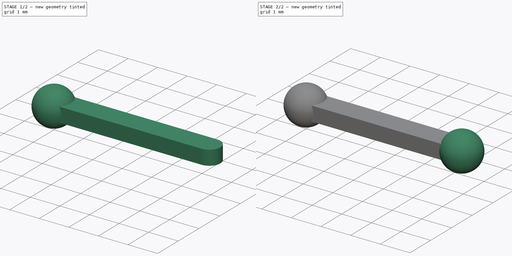
[diagram: build sequence overview — one tinted view per stage of 2, left to right]
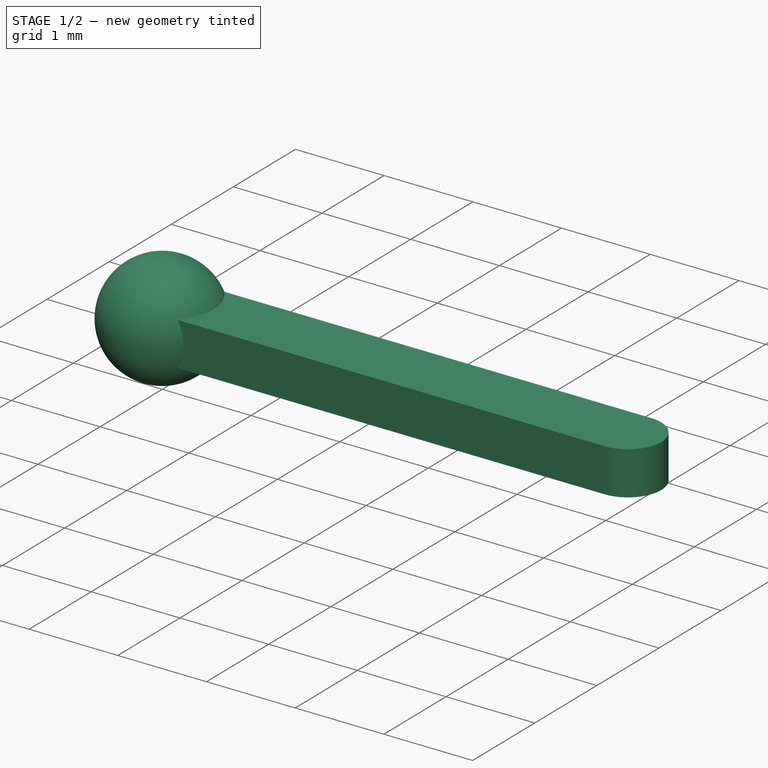
[diagram: stage 1 of 2 — iso view after this stage's code; geometry added in this stage tinted green]
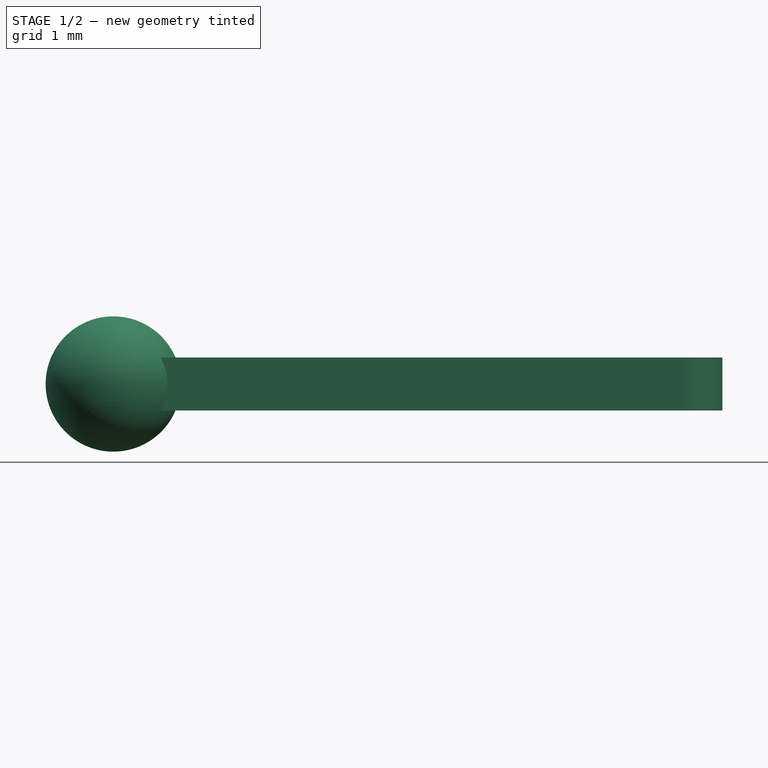
[diagram: stage 1 of 2 — front view after this stage's code; geometry added in this stage tinted green]
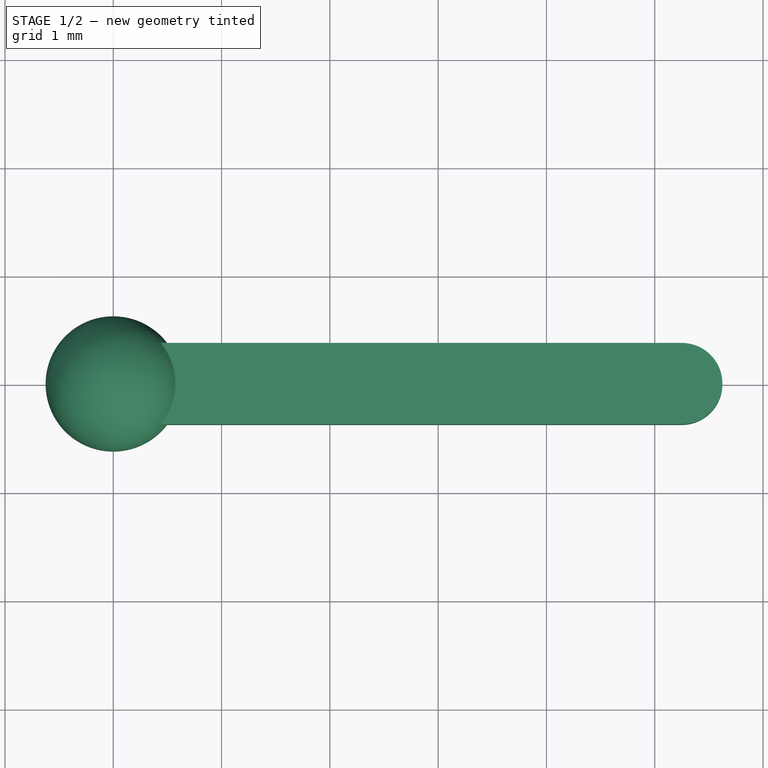
[diagram: stage 1 of 2 — top view after this stage's code; geometry added in this stage tinted green]
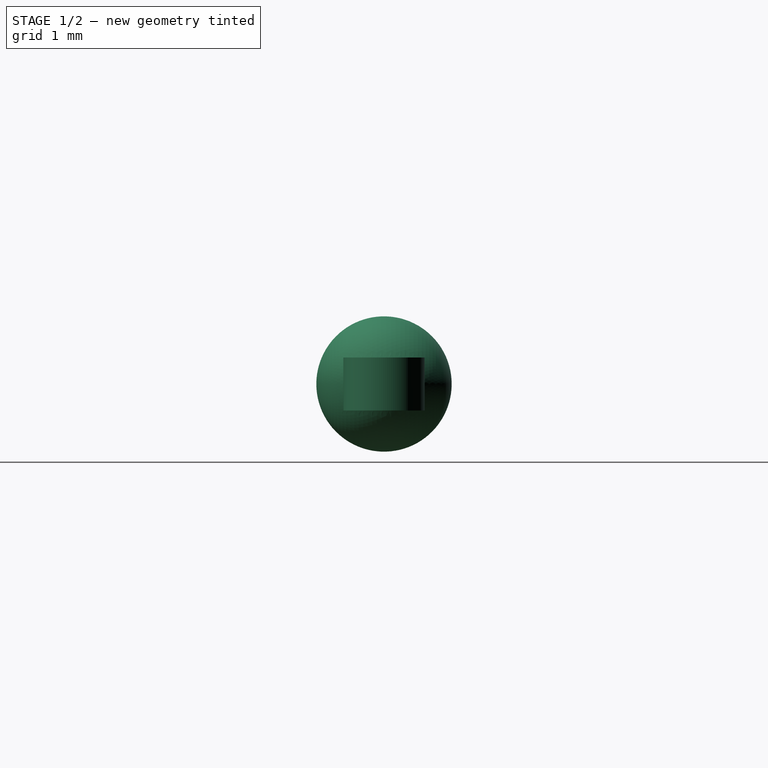
[diagram: stage 1 of 2 — right view after this stage's code; geometry added in this stage tinted green]
FCSTD DOCUMENT  (FreeCAD 0.20R29177 (Git))
Label: mu1
License: All rights reserved
LicenseURL: http://en.wikipedia.org/wiki/All_rights_reserved
objects: Sketcher::SketchObject×3, PartDesign::Line×2, PartDesign::Revolution×2, Spreadsheet::Sheet×1, PartDesign::Pad×1, PartDesign::Body×1
note: 12 computed .brp shape members not serialized (recipe doc carries the construction recipe); baked Part::Feature solids carry a one-line shape summary decoded from their .brp

FEATURE [Spreadsheet::Sheet] Spreadsheet
  cells = A2=Design Parameters; A3=RefLength; B3(RefLength)==1mm; A4=Width; B4(Width)==0.75 * RefLength; A5=Thickness; B5(Thickness)==0.5 * RefLength; A6=ThicknessMargin; B6(ThicknessMargin)==0.01 * RefLength; A7=ThicknessPad; B7(ThicknessPad)==Thickness - ThicknessMargin; A8=Length; B8(Length)==6 * RefLength; A9=BallCenterOffsetX; B9(BallCenterOffsetX)==Length - Width; A10=BallDiameter; B10(BallDiameter)==1.25 * RefLength; A11=BallToBallCenter; B11==2 * BallCenterOffsetX
FEATURE [Sketcher::SketchObject] Sketch  label="BeamSketch"
  FullyConstrained = true
  MapMode = 5
  Support = -> [XY_Plane]
  expr: Constraints[22] = Spreadsheet.Length
  expr: Constraints[23] = Spreadsheet.Width
  sketch-geometry (10):
    g0: LineSegment StartX=-1e-16 StartY=0.375 StartZ=0 EndX=5.25 EndY=0.375 EndZ=0
    g1: LineSegment StartX=5.25 StartY=-0.375 StartZ=0 EndX=0 EndY=-0.375 EndZ=0
    g2: LineSegment StartX=5.25 StartY=0.375 StartZ=0 EndX=5.25 EndY=-1e-16 EndZ=0
    g3: LineSegment StartX=5.25 StartY=0 StartZ=0 EndX=5.25 EndY=-0.375 EndZ=0
    g4: ArcOfCircle CenterX=5.25 CenterY=0 CenterZ=0 NormalX=0 NormalY=0 NormalZ=1 AngleXU=0 Radius=0.375 StartAngle=4.71239 EndAngle=7.85398
    g5: LineSegment StartX=-1e-16 StartY=0.375 StartZ=0 EndX=-1e-16 EndY=0 EndZ=0
    g6: LineSegment StartX=-1e-16 StartY=0 StartZ=0 EndX=-1e-16 EndY=-0.375 EndZ=0
    g7: ArcOfCircle CenterX=-1e-16 CenterY=0 CenterZ=0 NormalX=0 NormalY=0 NormalZ=1 AngleXU=0 Radius=0.375 StartAngle=1.5708 EndAngle=4.71239
    g8: GeomPoint X=-0.375 Y=0 Z=0
    g9: GeomPoint X=5.625 Y=0 Z=0
  constraints (25):
    c: Horizontal(g0)
    c: Horizontal(g1)
    c: Coincident(g2,g3)
    c: Coincident(g2,g0)
    c: Coincident(g3,g1)
    c: Coincident(g4,g1)
    c: Coincident(g4,g0)
    c: Coincident(g4,g2)
    c: Vertical(g3)
    c: Vertical(g2)
    c: Coincident(g5,g6)
    c: Vertical(g6)
    c: Vertical(g5)
    c: Coincident(g5,g0)
    c: Coincident(g6,g1)
    c: Coincident(g7,g1)
    c: Coincident(g7,g5)
    c: Coincident(g7,g0)
    c: PointOnObject(g8,g-1)
    c: PointOnObject(g8,g7)
    c: PointOnObject(g9,g-1)
    c: PointOnObject(g9,g4)
    c: DistanceX(g8,g9) = 6
    c: DistanceY(g1,g0) = 0.75
    c: Coincident(g7,g-1)
FEATURE [PartDesign::Pad] Pad  label="BeamPad"
  Direction = (0,0,1)
  Length = 0.49
  Length2 = 10
  Midplane = true
  Profile = -> Sketch
  ReferenceAxis = -> Sketch [N_Axis]
  Type = 0
  expr: Length = Spreadsheet.ThicknessPad
FEATURE [Sketcher::SketchObject] Sketch001  label="LeftBallSketch"
  FullyConstrained = true
  MapMode = 5
  Support = -> [XY_Plane]
  expr: Constraints[6] = Spreadsheet.BallDiameter
  sketch-geometry (3):
    g0: LineSegment StartX=-1e-16 StartY=0.625 StartZ=0 EndX=-1e-16 EndY=0 EndZ=0
    g1: LineSegment StartX=-1e-16 StartY=0 StartZ=0 EndX=-1e-16 EndY=-0.625 EndZ=0
    g2: ArcOfCircle CenterX=-1e-16 CenterY=0 CenterZ=0 NormalX=0 NormalY=0 NormalZ=1 AngleXU=0 Radius=0.625 StartAngle=1.5708 EndAngle=4.71239
  constraints (8):
    c: Coincident(g0,g1)
    c: Vertical(g1)
    c: Vertical(g0)
    c: Coincident(g2,g0)
    c: Coincident(g2,g0)
    c: Coincident(g2,g1)
    c: Diameter(g2) = 1.25
    c: Coincident(g0,g-1)
FEATURE [PartDesign::Line] DatumLine  label="LeftBallDatumLine"
  AttacherType = Attacher::AttachEngineLine
  Length = 20
  MapMode = 29
  Placement = pos=(-1e-16,0,0) rot=(1,0,0;1.5708rad)
  ResizeMode = 0
  Support = -> [Sketch001]
FEATURE [PartDesign::Revolution] Revolution  label="LeftBallRevolution"
  Angle = 360
  Axis = (0,-1,2e-16)
  Base = (-1e-16,0,0)
  BaseFeature = -> Pad
  Profile = -> Sketch001
  ReferenceAxis = -> DatumLine
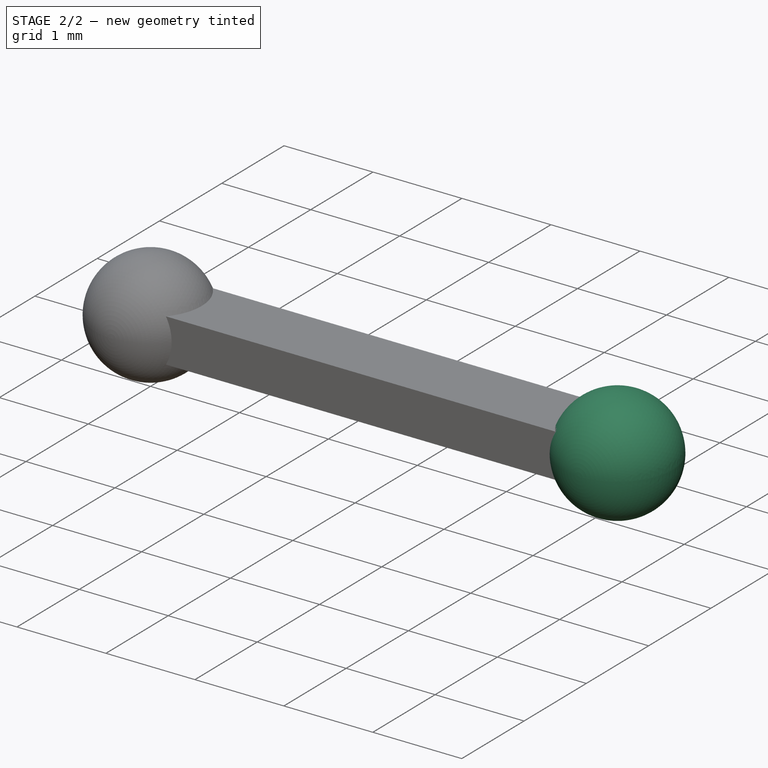
[diagram: stage 2 of 2 — iso view after this stage's code; geometry added in this stage tinted green]
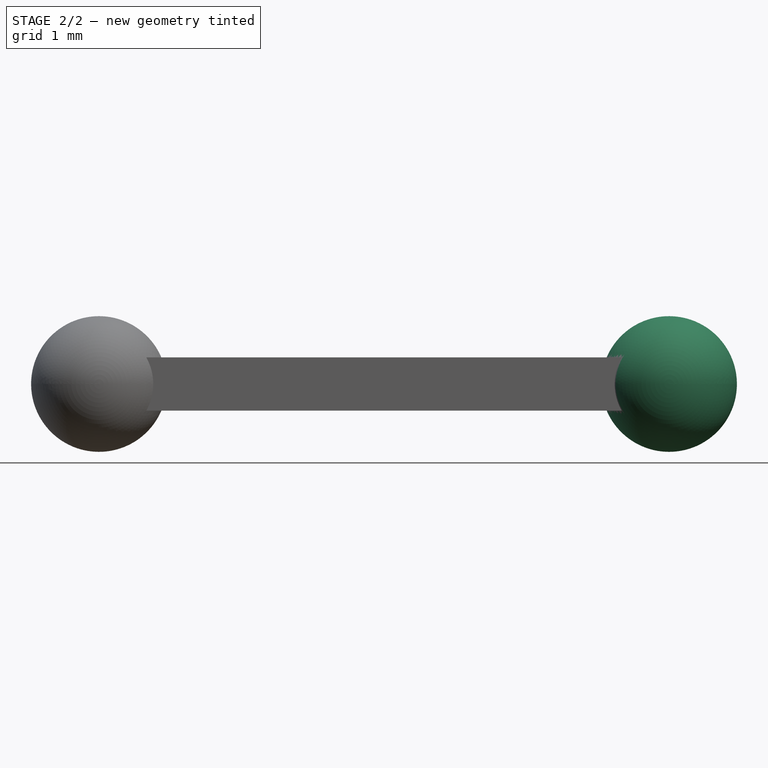
[diagram: stage 2 of 2 — front view after this stage's code; geometry added in this stage tinted green]
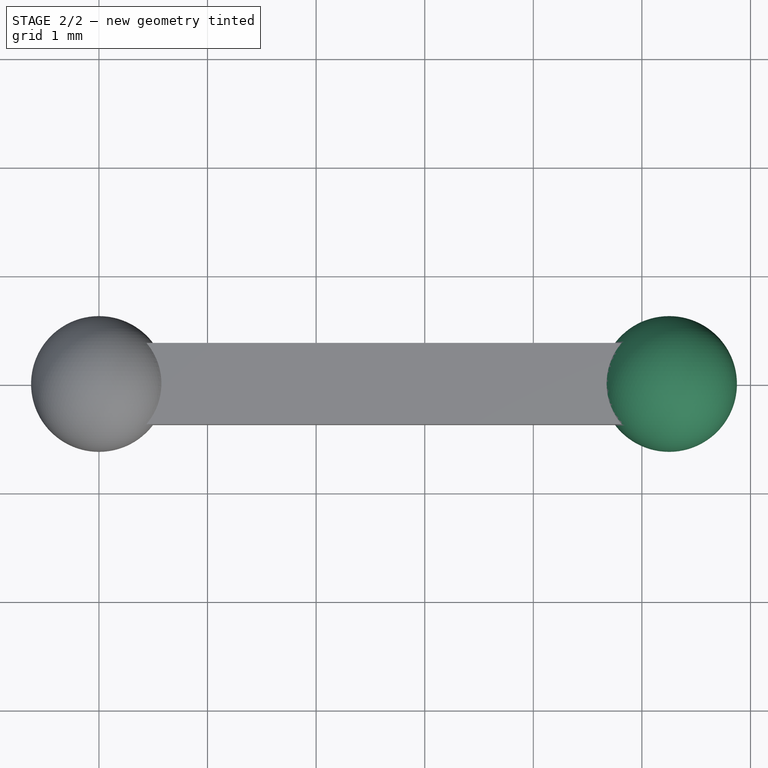
[diagram: stage 2 of 2 — top view after this stage's code; geometry added in this stage tinted green]
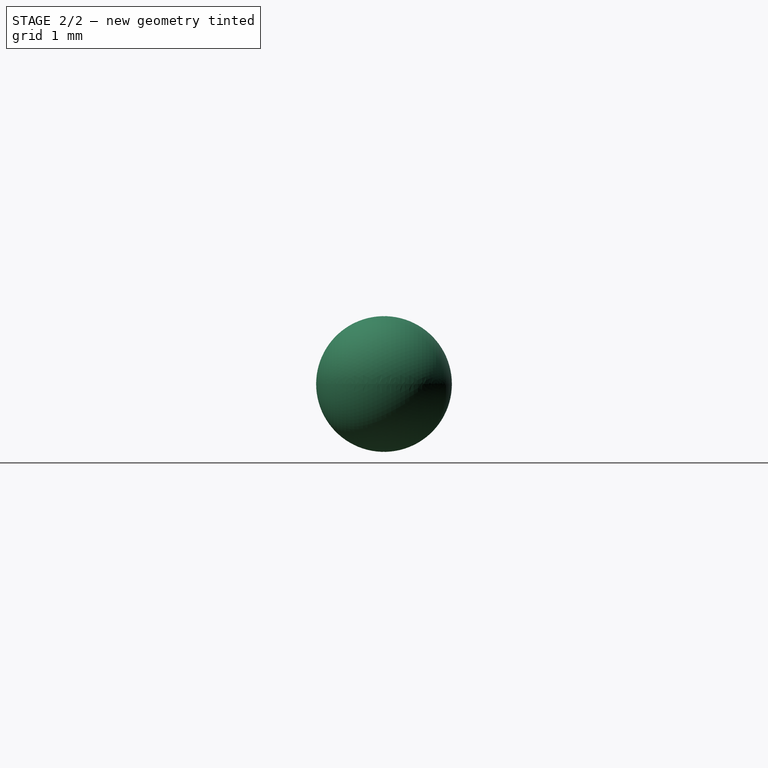
[diagram: stage 2 of 2 — right view after this stage's code; geometry added in this stage tinted green]
FEATURE [Sketcher::SketchObject] Sketch002  label="RightBallSketch"
  FullyConstrained = true
  MapMode = 5
  Support = -> [XY_Plane]
  expr: Constraints[10] = Spreadsheet.BallDiameter
  expr: Constraints[2] = Spreadsheet.BallCenterOffsetX
  sketch-geometry (4):
    g0: LineSegment StartX=0 StartY=0 StartZ=0 EndX=5.25 EndY=0 EndZ=0
    g1: ArcOfCircle CenterX=5.25 CenterY=0 CenterZ=0 NormalX=0 NormalY=0 NormalZ=1 AngleXU=0 Radius=0.625 StartAngle=4.71239 EndAngle=7.85398
    g2: LineSegment StartX=5.25 StartY=0.625 StartZ=0 EndX=5.25 EndY=0 EndZ=0
    g3: LineSegment StartX=5.25 StartY=0 StartZ=0 EndX=5.25 EndY=-0.625 EndZ=0
  constraints (11):
    c: Horizontal(g0)
    c: Coincident(g-1,g0)
    c: DistanceX(g0,g0) = 5.25
    c: Coincident(g0,g1)
    c: Vertical(g2)
    c: Vertical(g3)
    c: Coincident(g1,g3)
    c: Coincident(g1,g2)
    c: Coincident(g2,g1)
    c: Coincident(g3,g1)
    c: DistanceY(g1,g1) = 1.25
FEATURE [PartDesign::Line] DatumLine001  label="RightBallDatumLine"
  AttacherType = Attacher::AttachEngineLine
  Length = 20
  MapMode = 29
  Placement = pos=(5.25,0,0) rot=(1,0,0;1.5708rad)
  ResizeMode = 0
  Support = -> [Sketch002]
FEATURE [PartDesign::Revolution] Revolution001  label="RightBallRevolution"
  Angle = 360
  Axis = (0,-1,2e-16)
  Base = (5.25,0,0)
  BaseFeature = -> Revolution
  Profile = -> Sketch002
  ReferenceAxis = -> DatumLine001
  Reversed = true
FEATURE [PartDesign::Body] Body
  Group = -> [Sketch,Pad,Sketch001,DatumLine,Revolution,Sketch002,DatumLine001,Revolution001]
  Origin = -> Origin
  Tip = -> Revolution001
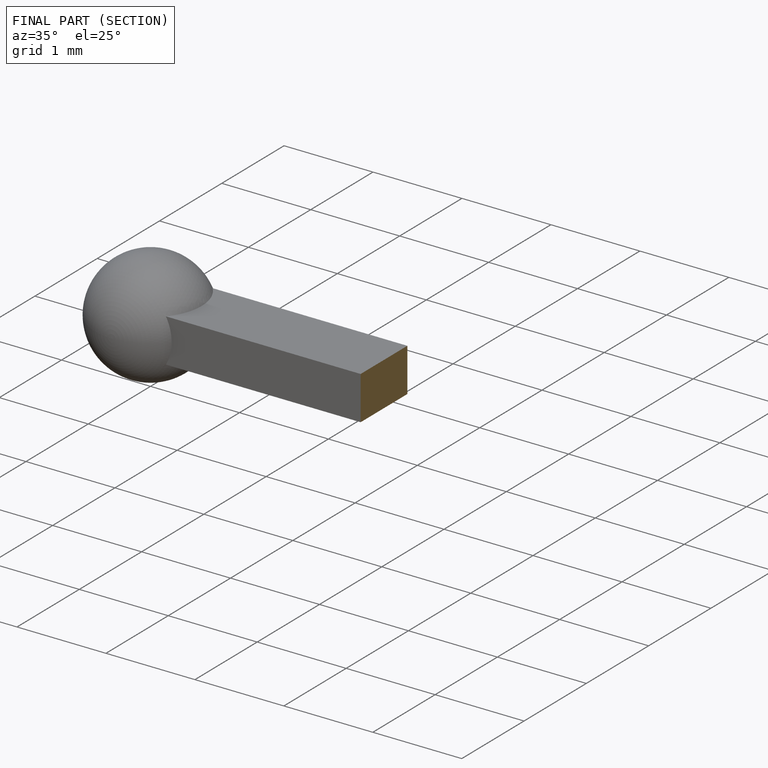
[diagram: finished part — half-section view (interior)]
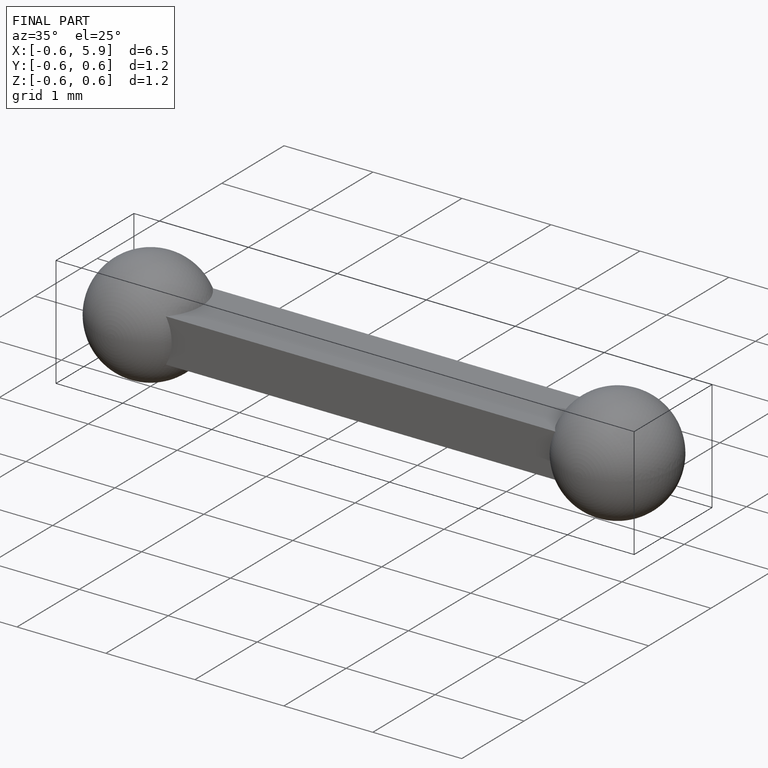
[diagram: finished part — iso view with bounding-box wireframe]
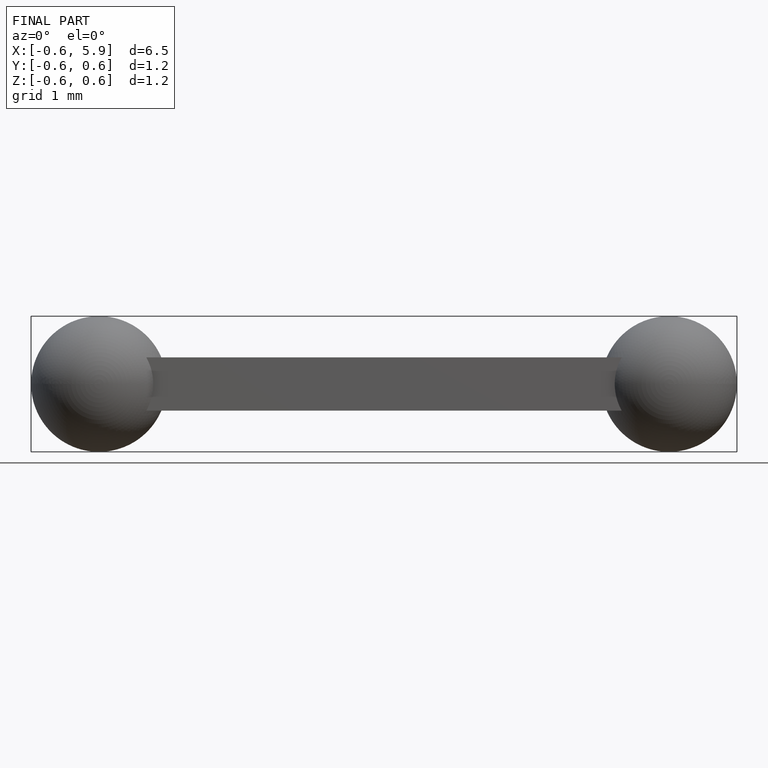
[diagram: finished part — front view with bounding-box wireframe]
